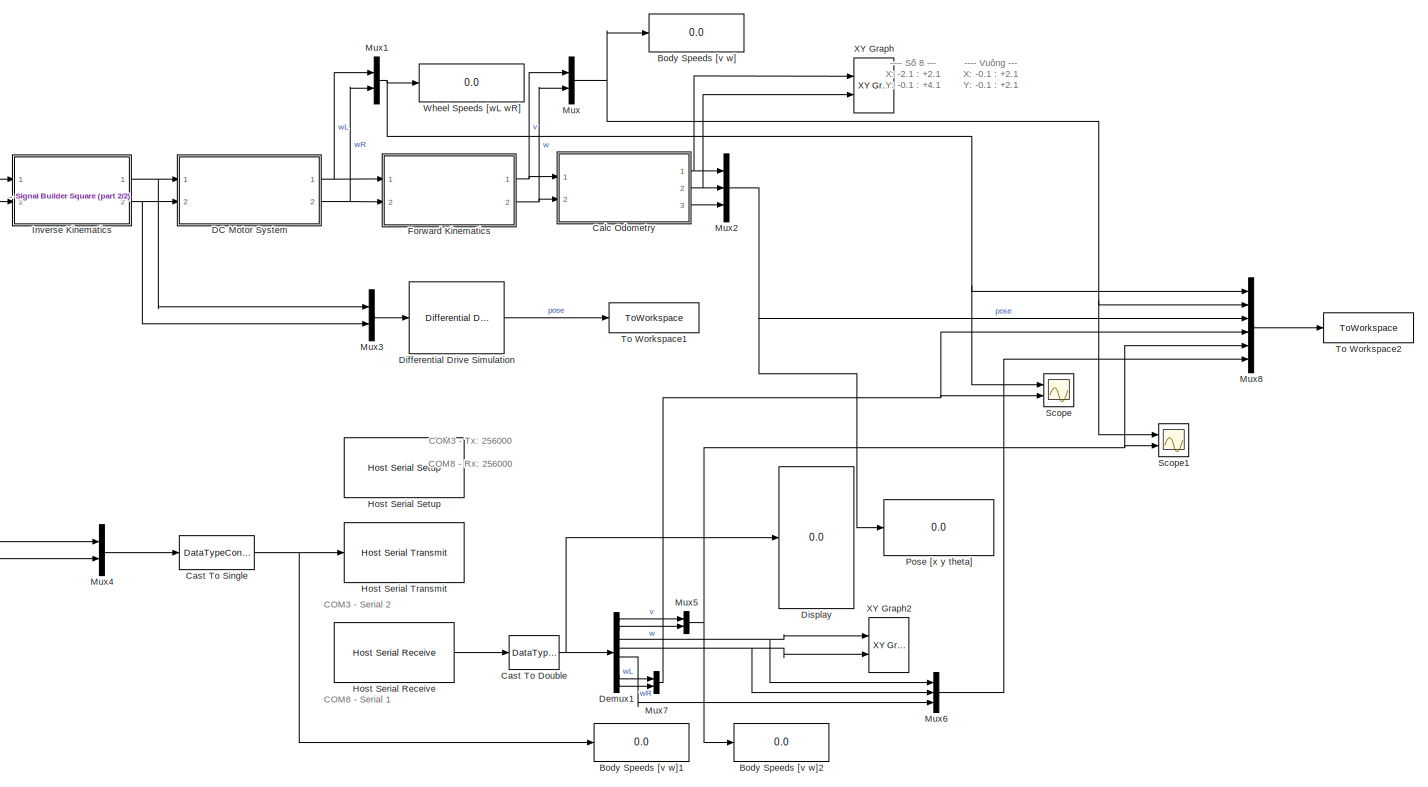
[diagram: root canvas - part 1/2, most of the canvas]
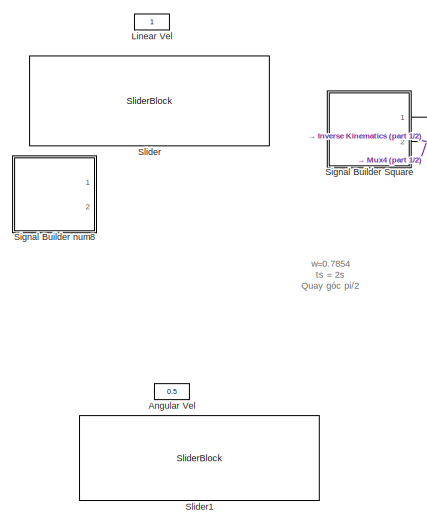
[diagram: root canvas - part 2/2, middle left region]
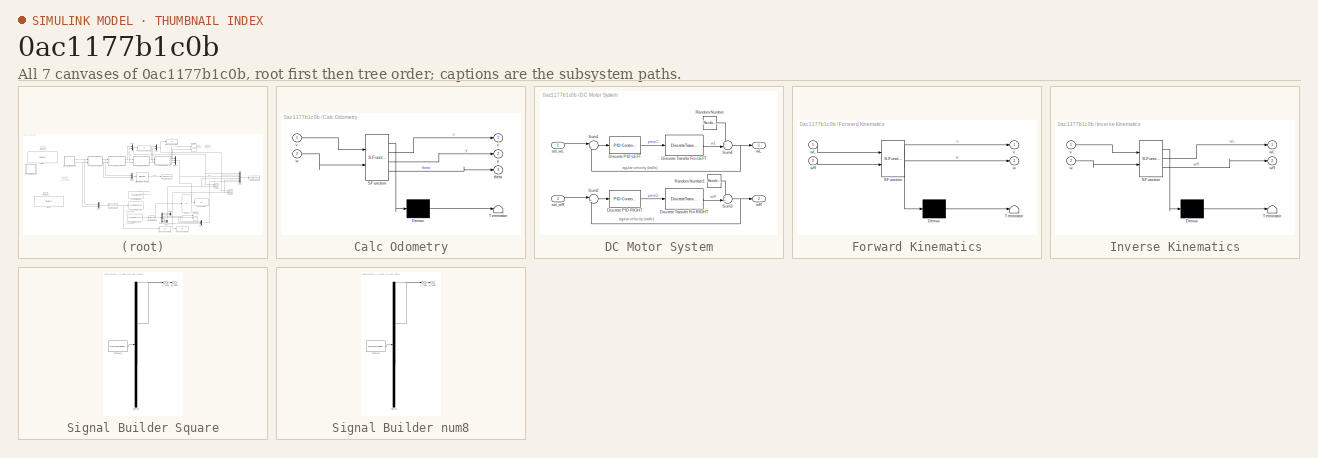
[diagram: thumbnail index - all 7 canvases of the model, root first then tree order]
MODEL slx_0ac1177b1c0b
KIND model
CONFIG AbsTol = auto
CONFIG EnableMultiTasking = off
CONFIG FixedStep = 0.005
CONFIG InitFcn = addpath(genpath('<path>'))
CONFIG MaxStep = auto
CONFIG MinStep = auto
CONFIG RelTol = 1e-3
CONFIG SampleTimeConstraint = Unconstrained
CONFIG Solver = FixedStepDiscrete
CONFIG SolverName = FixedStepDiscrete
CONFIG StartTime = 0.0
CONFIG StopTime = 30
BLOCK [Constant] Angular Vel
  Value = 0.5
BLOCK [Display] Body Speeds [v w]
  Decimation = 1
  Ports = [1]
BLOCK [Display] Body Speeds [v w]1
  Decimation = 1
  Ports = [1]
BLOCK [Display] Body Speeds [v w]2
  Decimation = 1
  Ports = [1]
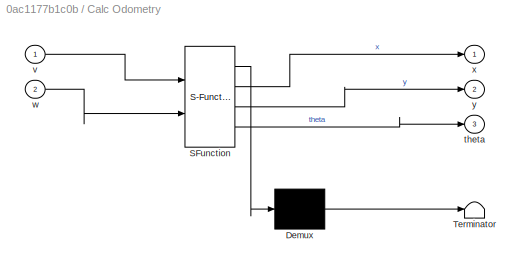
BLOCK [SubSystem] Calc Odometry
  ErrorFcn = Stateflow.Translate.translate
  PermitHierarchicalResolution = ExplicitOnly
  Ports = [2, 3]
  RequestExecContextInheritance = off
  SFBlockType = MATLAB Function
  TreatAsAtomicUnit = on
BLOCK [Demux] Calc Odometry/ Demux 
  Outputs = 1
  Ports = [1, 1]
BLOCK [S-Function] Calc Odometry/ SFunction 
  EnableBusSupport = on
  FunctionName = sf_sfun
  PortCounts = [2 4]
  Ports = [2, 4]
  SFcnIsStateOwnerBlock = off
  SFunctionDeploymentMode = off
  Tag = Stateflow S-Function 3
BLOCK [Terminator] Calc Odometry/ Terminator 
BLOCK [Outport] Calc Odometry/theta
  Port = 3
BLOCK [Inport] Calc Odometry/v
BLOCK [Inport] Calc Odometry/w
  Port = 2
BLOCK [Outport] Calc Odometry/x
BLOCK [Outport] Calc Odometry/y
  Port = 2
BLOCK [DataTypeConversion] Cast To Double
  OutDataTypeStr = double
  RndMeth = Floor
  SaturateOnIntegerOverflow = off
BLOCK [DataTypeConversion] Cast To Single
  OutDataTypeStr = single
  RndMeth = Floor
  SaturateOnIntegerOverflow = off
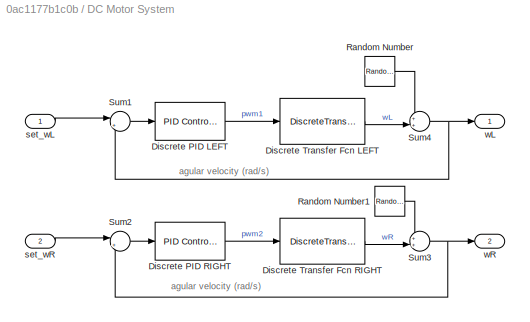
BLOCK [SubSystem] DC Motor System
  Ports = [2, 2]
  RequestExecContextInheritance = off
BLOCK [Reference] DC Motor System/Discrete PID LEFT  REF=simulink/Continuous/PID Controller
  Ports = [1, 1]
  SourceBlock = simulink/Continuous/PID Controller
  SourceProductBaseCode = SL
  SourceType = PID 1dof
BLOCK [Reference] DC Motor System/Discrete PID RIGHT  REF=simulink/Continuous/PID Controller
  Ports = [1, 1]
  SourceBlock = simulink/Continuous/PID Controller
  SourceProductBaseCode = SL
  SourceType = PID 1dof
BLOCK [DiscreteTransferFcn] DC Motor System/Discrete Transfer Fcn LEFT
  Denominator = [1 -0.8037]
  InputPortMap = u0
  Numerator = 0.005571
  Ports = [1, 1]
BLOCK [DiscreteTransferFcn] DC Motor System/Discrete Transfer Fcn RIGHT
  Denominator = [1 -0.7937]
  InputPortMap = u0
  Numerator = [0.007311]
  Ports = [1, 1]
BLOCK [RandomNumber] DC Motor System/Random Number
  SampleTime = 0.005
  Variance = 0.020583
BLOCK [RandomNumber] DC Motor System/Random Number1
  SampleTime = 0.005
  Variance = 0.0847669
BLOCK [Sum] DC Motor System/Sum1
  Inputs = |+-
  Ports = [2, 1]
BLOCK [Sum] DC Motor System/Sum2
  Inputs = |+-
  Ports = [2, 1]
BLOCK [Sum] DC Motor System/Sum3
  Inputs = ++|
  Ports = [2, 1]
BLOCK [Sum] DC Motor System/Sum4
  Inputs = ++|
  Ports = [2, 1]
BLOCK [Inport] DC Motor System/set_wL
BLOCK [Inport] DC Motor System/set_wR
  Port = 2
BLOCK [Outport] DC Motor System/wL
BLOCK [Outport] DC Motor System/wR
  Port = 2
BLOCK [Demux] Demux1
  Outputs = 8
  Ports = [1, 8]
BLOCK [Reference] Differential Drive Simulation  REF=mobileRoboticsLib/Kinematic Models/Differential Drive/Differential Drive Simulation
  Ports = [1, 1]
  SourceBlock = mobileRoboticsLib/Kinematic Models/Differential Drive/Differential Drive Simulation
  SourceProductName = Mobile Robotics Simulation Library
  SourceType = Differential Drive Simulation
BLOCK [Display] Display
  Decimation = 1
  Ports = [1]
BLOCK [SubSystem] Forward Kinematics
  ErrorFcn = Stateflow.Translate.translate
  PermitHierarchicalResolution = ExplicitOnly
  Ports = [2, 2]
  RequestExecContextInheritance = off
  SFBlockType = MATLAB Function
  TreatAsAtomicUnit = on
BLOCK [Demux] Forward Kinematics/ Demux 
  Outputs = 1
  Ports = [1, 1]
BLOCK [S-Function] Forward Kinematics/ SFunction 
  EnableBusSupport = on
  FunctionName = sf_sfun
  PortCounts = [2 3]
  Ports = [2, 3]
  SFcnIsStateOwnerBlock = off
  SFunctionDeploymentMode = off
  Tag = Stateflow S-Function 1
BLOCK [Terminator] Forward Kinematics/ Terminator 
BLOCK [Outport] Forward Kinematics/v
BLOCK [Outport] Forward Kinematics/w
  Port = 2
BLOCK [Inport] Forward Kinematics/wL
BLOCK [Inport] Forward Kinematics/wR
  Port = 2
BLOCK [Reference] Host Serial Receive  REF=mcbhostblockslib/Host Serial Receive
  Ports = [0, 1]
  SourceBlock = mcbhostblockslib/Host Serial Receive
  SourceProductBaseCode = MT
  SourceType = Host Serial Receive
BLOCK [Reference] Host Serial Setup  REF=mcbhostblockslib/Host Serial Setup
  Ports = []
  Priority = -99
  SourceBlock = mcbhostblockslib/Host Serial Setup
  SourceProductBaseCode = MT
  SourceType = Host Serial Setup
BLOCK [Reference] Host Serial Transmit  REF=mcbhostblockslib/Host Serial Transmit
  Ports = [1]
  SourceBlock = mcbhostblockslib/Host Serial Transmit
  SourceProductBaseCode = MT
  SourceType = Host Serial Transmit
BLOCK [SubSystem] Inverse Kinematics
  ErrorFcn = Stateflow.Translate.translate
  PermitHierarchicalResolution = ExplicitOnly
  Ports = [2, 2]
  RequestExecContextInheritance = off
  SFBlockType = MATLAB Function
  TreatAsAtomicUnit = on
BLOCK [Demux] Inverse Kinematics/ Demux 
  Outputs = 1
  Ports = [1, 1]
BLOCK [S-Function] Inverse Kinematics/ SFunction 
  EnableBusSupport = on
  FunctionName = sf_sfun
  PortCounts = [2 3]
  Ports = [2, 3]
  SFcnIsStateOwnerBlock = off
  SFunctionDeploymentMode = off
  Tag = Stateflow S-Function 2
BLOCK [Terminator] Inverse Kinematics/ Terminator 
BLOCK [Inport] Inverse Kinematics/v
BLOCK [Inport] Inverse Kinematics/w
  Port = 2
BLOCK [Outport] Inverse Kinematics/wL
BLOCK [Outport] Inverse Kinematics/wR
  Port = 2
BLOCK [Constant] Linear Vel
BLOCK [Mux] Mux
  DisplayOption = bar
  Inputs = 2
  Ports = [2, 1]
BLOCK [Mux] Mux1
  DisplayOption = bar
  Inputs = 2
  Ports = [2, 1]
BLOCK [Mux] Mux2
  DisplayOption = bar
  Inputs = 3
  Ports = [3, 1]
BLOCK [Mux] Mux3
  DisplayOption = bar
  Inputs = 2
  Ports = [2, 1]
BLOCK [Mux] Mux4
  DisplayOption = bar
  Inputs = 2
  Ports = [2, 1]
BLOCK [Mux] Mux5
  DisplayOption = bar
  Inputs = 2
  Ports = [2, 1]
BLOCK [Mux] Mux6
  DisplayOption = bar
  Inputs = 3
  Ports = [3, 1]
BLOCK [Mux] Mux7
  DisplayOption = bar
  Inputs = 2
  Ports = [2, 1]
BLOCK [Mux] Mux8
  DisplayOption = bar
  Inputs = 6
  Ports = [6, 1]
BLOCK [Display] Pose [x y theta]
  Decimation = 1
  Ports = [1]
BLOCK [Scope] Scope
  Floating = off
  NumInputPorts = 2
  Ports = [2]
  ScopeSpecificationString = Simulink.scopes.TimeScopeBlockCfg('CurrentConfiguration', extmgr.ConfigurationSet(extmgr.Configuration('Core','General UI',true,'FigureColor',[1 1 1]),extmgr.Configuration('Core','Source UI',true),extmgr.Configuration('Sources','WiredSimulink',true),extmgr.Configuration('Visuals','Time Domain',true,'SerializedDisplays',{struct('MinYLimReal','-4.22721','MaxYLimReal','10.58031','YLabelReal','','MinY...<+2388ch>
BLOCK [Scope] Scope1
  Floating = off
  NumInputPorts = 2
  Ports = [2]
  ScopeSpecificationString = Simulink.scopes.TimeScopeBlockCfg('CurrentConfiguration', extmgr.ConfigurationSet(extmgr.Configuration('Core','General UI',true,'FigureColor',[1 1 1]),extmgr.Configuration('Core','Source UI',true),extmgr.Configuration('Sources','WiredSimulink',true,'DataLoggingVariableName','ScopeData1'),extmgr.Configuration('Visuals','Time Domain',true,'SerializedDisplays',{struct('MinYLimReal','-0.22351','MaxYLi...<+2420ch>
BLOCK [SubSystem] Signal Builder Square
  ClipboardFcn = sigbuilder_block('clipboard');
  CloseFcn = sigbuilder_block('close');
  ContinueFcn = sigbuilder_block('continue');
  CopyFcn = sigbuilder_block('copy');
  DeleteFcn = sigbuilder_block('delete');
  LoadFcn = sigbuilder_block('load');
  MaskHideContents = on
  ModelCloseFcn = sigbuilder_block('modelClose');
  NameChangeFcn = sigbuilder_block('namechange');
  OpenFcn = sigbuilder_block('open',[128.25 211.5 550.5 399.75 ]);
  PauseFcn = sigbuilder_block('pause');
  Ports = [0, 2]
  PreSaveFcn = sigbuilder_block('preSave');
  RequestExecContextInheritance = off
  StartFcn = sigbuilder_block('start');
  StopFcn = sigbuilder_block('stop');
  Tag = STV Subsys
BLOCK [Demux] Signal Builder Square/Demux
  DisplayOption = none
  Outputs = 2
  Ports = [1, 2]
  Tag = STV Demux
BLOCK [FromWorkspace] Signal Builder Square/FromWs
  Tag = STV FromWs
  VariableName = tuvar
BLOCK [Outport] Signal Builder Square/v_robot
  Tag = STV Outport
BLOCK [Outport] Signal Builder Square/w_robot
  Port = 2
  Tag = STV Outport
BLOCK [SubSystem] Signal Builder num8
  ClipboardFcn = sigbuilder_block('clipboard');
  CloseFcn = sigbuilder_block('close');
  ContinueFcn = sigbuilder_block('continue');
  CopyFcn = sigbuilder_block('copy');
  DeleteFcn = sigbuilder_block('delete');
  LoadFcn = sigbuilder_block('load');
  MaskHideContents = on
  ModelCloseFcn = sigbuilder_block('modelClose');
  NameChangeFcn = sigbuilder_block('namechange');
  OpenFcn = sigbuilder_block('open',[204 220.5 771.75 398.25 ]);
  PauseFcn = sigbuilder_block('pause');
  Ports = [0, 2]
  PreSaveFcn = sigbuilder_block('preSave');
  RequestExecContextInheritance = off
  StartFcn = sigbuilder_block('start');
  StopFcn = sigbuilder_block('stop');
  Tag = STV Subsys
BLOCK [Demux] Signal Builder num8/Demux
  DisplayOption = none
  Outputs = 2
  Ports = [1, 2]
  Tag = STV Demux
BLOCK [FromWorkspace] Signal Builder num8/FromWs
  Tag = STV FromWs
  VariableName = tuvar
BLOCK [Outport] Signal Builder num8/v_robot
  Tag = STV Outport
BLOCK [Outport] Signal Builder num8/w_robot
  Port = 2
  Tag = STV Outport
BLOCK [SliderBlock] Slider
  ScaleMax = 1
  ScaleMin = -1
  TickInterval = 0.25
BLOCK [SliderBlock] Slider1
  ScaleMax = 1.5
  ScaleMin = -1.5
BLOCK [ToWorkspace] To Workspace1
  FixptAsFi = on
  MaxDataPoints = inf
  Ports = [1]
  SampleTime = -1
  SaveFormat = Timeseries
  VariableName = simout1
BLOCK [ToWorkspace] To Workspace2
  FixptAsFi = on
  MaxDataPoints = inf
  Ports = [1]
  SampleTime = -1
  SaveFormat = Timeseries
  VariableName = simout
BLOCK [Display] Wheel Speeds [wL wR]
  Decimation = 1
  Ports = [1]
BLOCK [Reference] XY Graph  REF=simulink/Sinks/XY Graph
  Ports = [2]
  SourceBlock = simulink/Sinks/XY Graph
  SourceProductBaseCode = SL
  SourceType = XY scope.
BLOCK [Reference] XY Graph2  REF=simulink/Sinks/XY Graph
  Ports = [2]
  SourceBlock = simulink/Sinks/XY Graph
  SourceProductBaseCode = SL
  SourceType = XY scope.
ANNOTATION (root): ---- Số 8 --- X: -2.1 : +2.1 Y: -0.1 : +4.1
ANNOTATION (root): ---- Vuông --- X: -0.1 : +2.1 Y: -0.1 : +2.1
ANNOTATION (root): COM3 - Serial 2
ANNOTATION (root): COM3 - Tx: 256000 COM8 - Rx: 256000
ANNOTATION (root): COM8 - Serial 1
ANNOTATION (root): w=0.7854 ts = 2s Quay góc pi/2
ANNOTATION DC Motor System: agular velocity (rad/s)
NET Calc Odometry:1 -> Mux2:1, XY Graph:1
NET Calc Odometry:2 -> Mux2:2, XY Graph:2
LINE Calc Odometry:3 -> Mux2:3
NET Cast To Double:1 -> Demux1:1, Display:1
NET Cast To Single:1 -> Body Speeds [v w]1:1, Host Serial Transmit:1
LINE DC Motor System/Discrete PID LEFT:1 -> DC Motor System/Discrete Transfer Fcn LEFT:1
LINE DC Motor System/Discrete PID RIGHT:1 -> DC Motor System/Discrete Transfer Fcn RIGHT:1
LINE DC Motor System/Discrete Transfer Fcn LEFT:1 -> DC Motor System/Sum4:2
LINE DC Motor System/Discrete Transfer Fcn RIGHT:1 -> DC Motor System/Sum3:2
LINE DC Motor System/Random Number1:1 -> DC Motor System/Sum3:1
LINE DC Motor System/Random Number:1 -> DC Motor System/Sum4:1
LINE DC Motor System/Sum1:1 -> DC Motor System/Discrete PID LEFT:1
LINE DC Motor System/Sum2:1 -> DC Motor System/Discrete PID RIGHT:1
NET DC Motor System/Sum3:1 -> DC Motor System/Sum2:2, DC Motor System/wR:1
NET DC Motor System/Sum4:1 -> DC Motor System/Sum1:2, DC Motor System/wL:1
LINE DC Motor System/set_wL:1 -> DC Motor System/Sum1:1
LINE DC Motor System/set_wR:1 -> DC Motor System/Sum2:1
NET DC Motor System:1 -> Forward Kinematics:1, Mux1:1
NET DC Motor System:2 -> Forward Kinematics:2, Mux1:2
LINE Demux1:1 -> Mux5:1
LINE Demux1:2 -> Mux5:2
NET Demux1:3 -> Mux6:1, XY Graph2:1
NET Demux1:4 -> Mux6:2, XY Graph2:2
LINE Demux1:5 -> Mux6:3
LINE Demux1:7 -> Mux7:1
LINE Demux1:8 -> Mux7:2
LINE Differential Drive Simulation:1 -> To Workspace1:1
NET Forward Kinematics:1 -> Calc Odometry:1, Mux:1
NET Forward Kinematics:2 -> Calc Odometry:2, Mux:2
LINE Host Serial Receive:1 -> Cast To Double:1
NET Inverse Kinematics:1 -> DC Motor System:1, Mux3:1
NET Inverse Kinematics:2 -> DC Motor System:2, Mux3:2
NET Mux1:1 -> Mux8:1, Scope:1, Wheel Speeds [wL wR]:1
NET Mux2:1 -> Mux8:3, Pose [x y theta]:1
LINE Mux3:1 -> Differential Drive Simulation:1
LINE Mux4:1 -> Cast To Single:1
NET Mux5:1 -> Body Speeds [v w]2:1, Mux8:5, Scope1:2
LINE Mux6:1 -> Mux8:6
NET Mux7:1 -> Mux8:4, Scope:2
LINE Mux8:1 -> To Workspace2:1
NET Mux:1 -> Body Speeds [v w]:1, Mux8:2, Scope1:1
NET Signal Builder Square:1 -> Inverse Kinematics:1, Mux4:1
NET Signal Builder Square:2 -> Inverse Kinematics:2, Mux4:2
note: NET lines group one-source signal fan-out (src -> all destinations, sorted); 1:1 wires keep LINE
CHART Forward Kinematics states=1 transitions=1
  STATE_LABEL 'eML_blk_kernel()'
  STATE_LABEL 'SCRIPT:\nfunction [v,w] = forwardKinematics(wL,wR)\n    % Calculates linear and angular velocity from wheel speeds\n    wheelRadius = 0.0625;\n    wheelBase = 0.37;\n    v = 0.5*wheelRadius*(wL+wR);\n    w = (wR-wL)*wheelRadius/wheelBase;\nend'
CHART Inverse Kinematics states=1 transitions=1
  STATE_LABEL 'eML_blk_kernel()'
  STATE_LABEL 'SCRIPT:\n%hiennd, 04/08/2020\nfunction [wL,wR] = inverseKinematics(v,w)   \n    wheelRadius = 0.0625;\n    wheelBase = 0.37;\n    % Calculates wheel speeds from linear and angular velocity          \n    wL = (v - w*wheelBase/2)/wheelRadius;\n    wR = (v + w*wheelBase/2)/wheelRadius;\nend'
CHART Calc Odometry states=1 transitions=1
  STATE_LABEL 'eML_blk_kernel()'
  STATE_LABEL 'SCRIPT:\nfunction [x,y,theta] = calcOdometry(v,w)\n    persistent pose\n    if isempty(pose)\n        pose = zeros(3,1);    % Pose matrix\n    end\n    sampleTime = 0.005; %5ms\n    velB = [v;0;w]; % Body velocities [vx;vy;w]\n    % Convert from body to world\n    %theta = pose(3); == ok\n    %new code\n    theta = pose(3) + 0.5*w*sampleTime; %,OK, too !!!\n    vel = [cos(theta) -sin(theta) 0; sin(theta) cos(...<+176ch>'
CHART  states=0 transitions=0
CHART  states=0 transitions=0
CHART  states=0 transitions=0
note: 1 file-system path scrubbed to <path> (not preserved elsewhere — flat text is the only slx artifact)
